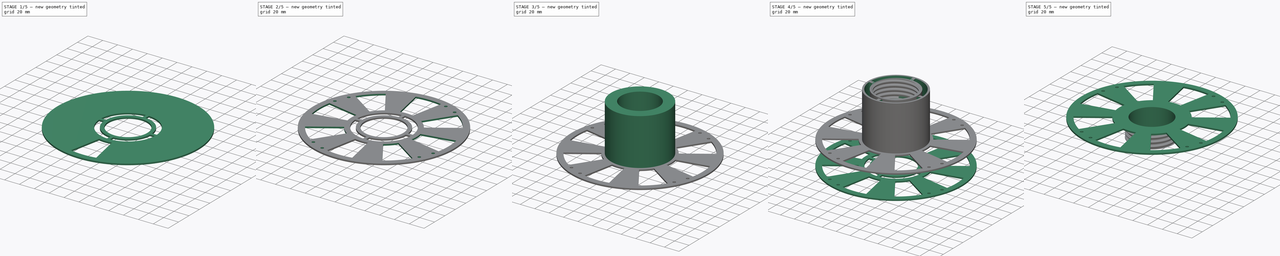
[diagram: build sequence overview — one tinted view per stage of 5, left to right]
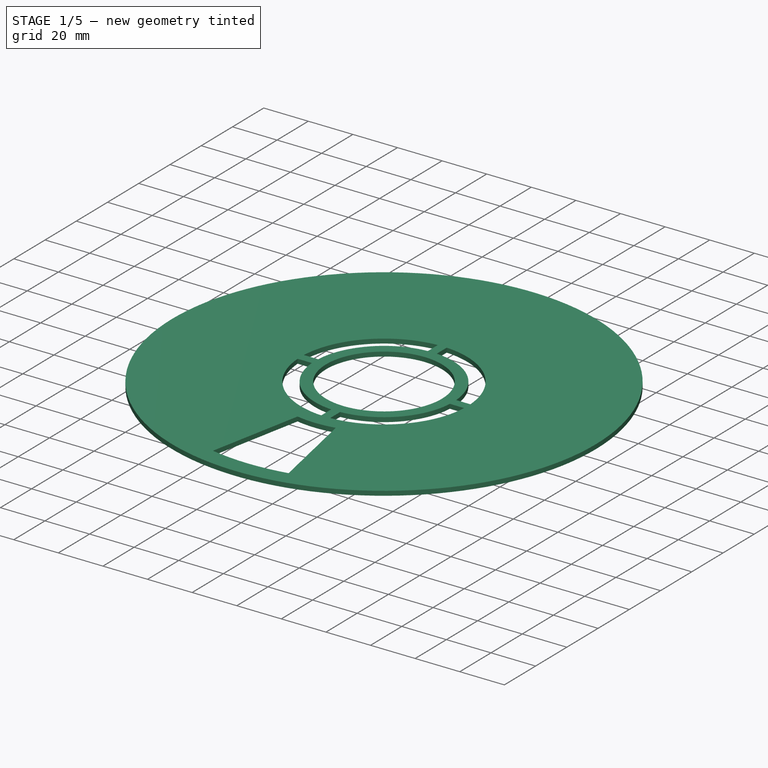
[diagram: stage 1 of 5 — iso view after this stage's code; geometry added in this stage tinted green]
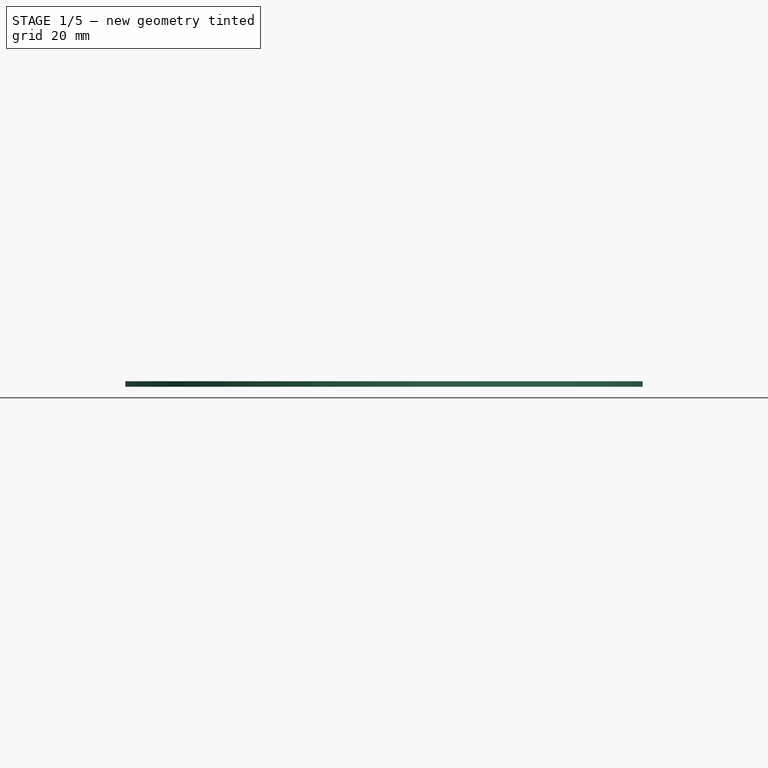
[diagram: stage 1 of 5 — front view after this stage's code; geometry added in this stage tinted green]
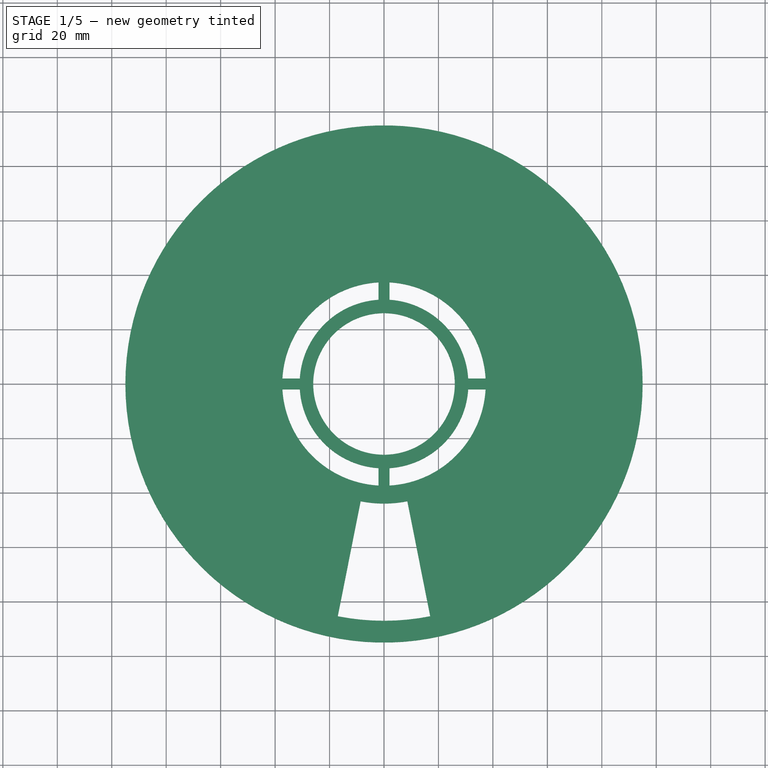
[diagram: stage 1 of 5 — top view after this stage's code; geometry added in this stage tinted green]
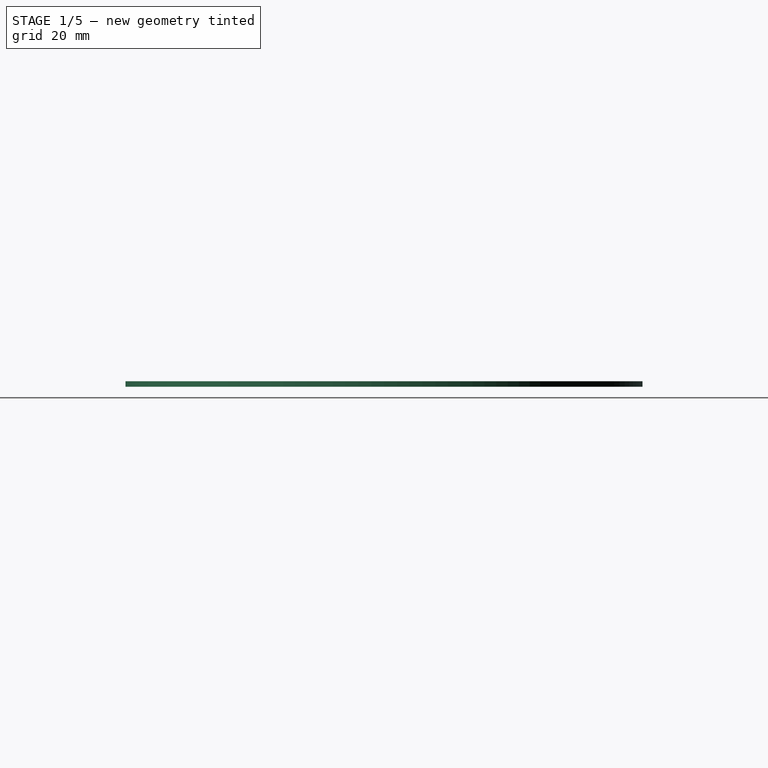
[diagram: stage 1 of 5 — right view after this stage's code; geometry added in this stage tinted green]
FCSTD DOCUMENT  (FreeCAD 1.0R39109 (Git))
Label: FilamentSpool
License: All rights reserved
LicenseURL: https://en.wikipedia.org/wiki/All_rights_reserved
objects: Sketcher::SketchObject×8, PartDesign::Pad×5, PartDesign::Pocket×4, PartDesign::Body×4, PartDesign::PolarPattern×3, PartDesign::Hole×2, PartDesign::FeatureBase×2, PartDesign::SubShapeBinder×1, PartDesign::Chamfer×1, Part::Cut×1
note: 68 computed .brp shape members not serialized (recipe doc carries the construction recipe); baked Part::Feature solids carry a one-line shape summary decoded from their .brp

FEATURE [Sketcher::SketchObject] Sketch006  label="MainBaseSketch001"
  ArcFitTolerance = 1e-06
  AttachmentSupport = -> [XY_Plane003]
  FullyConstrained = true
  MakeInternals = false
  MapMode = 5
  sketch-geometry (2):
    g0: Circle CenterX=0 CenterY=0 CenterZ=0 NormalX=0 NormalY=0 NormalZ=1 AngleXU=0 Radius=95
    g1: Circle CenterX=0 CenterY=0 CenterZ=0 NormalX=0 NormalY=0 NormalZ=1 AngleXU=0 Radius=26
  constraints (4):
    c: Diameter(g0) = 190
    c: Coincident(g0,g-1)
    c: Coincident(g1,g0)
    c: Diameter(g1) = 52
FEATURE [PartDesign::Pad] Pad004  label="MainBasePad001"
  Direction = (0,0,1)
  Length = 2
  Length2 = 10
  Profile = -> Sketch006
  ReferenceAxis = -> Sketch006 [N_Axis]
  Refine = true
  Suppressed = false
  Type = 0
FEATURE [Sketcher::SketchObject] Sketch008  label="MainBaseCenterGapSketch"
  ArcFitTolerance = 1e-06
  ExternalGeometry = -> [Pad004]
  FullyConstrained = true
  MakeInternals = false
  MapMode = 5
  Placement = pos=(0,0,72) rot=(0,0,1;0rad)
  sketch-geometry (8):
    g0: ArcOfCircle CenterX=-0.124363 CenterY=-0.124363 CenterZ=0 NormalX=0 NormalY=0 NormalZ=1 AngleXU=0 Radius=37.5 StartAngle=0.05668 EndAngle=1.51412
    g1: ArcOfCircle CenterX=0 CenterY=0 CenterZ=0 NormalX=0 NormalY=0 NormalZ=1 AngleXU=0 Radius=31 StartAngle=0.064561 EndAngle=1.50624
    g2: LineSegment StartX=37.3154 StartY=2 StartZ=0 EndX=30.9354 EndY=2 EndZ=0
    g3: LineSegment StartX=2 StartY=37.3154 StartZ=0 EndX=2 EndY=30.9354 EndZ=0
    g4: GeomPoint X=0 Y=25.9354 Z=0
    g5: LineSegment [constr] StartX=0 StartY=0 StartZ=0 EndX=26.3921 EndY=26.3921 EndZ=0
    g6: GeomPoint X=18.3848 Y=18.3848 Z=0
    g7: GeomPoint X=21.9203 Y=21.9203 Z=0
  constraints (22):
    c: Coincident(g2,g0)
    c: Coincident(g2,g1)
    c: Coincident(g3,g0)
    c: Coincident(g3,g1)
    c: Coincident(g1,g-1)
    c: Horizontal(g2)
    c: Vertical(g3)
    c: DistanceY(g3,g3) = 6.38
    c: DistanceX(g2,g2) = 6.38
    c: DistanceX(g-1,g0) = 2
    c: DistanceY(g-1,g0) = 2
    c: PointOnObject(g4,g-2)
    c: DistanceY(g4,g1) = 5
    c: Diameter(g0) = 75
    c: Coincident(g5,g1)
    c: Angle(g-1,g5) = 0.785398
    c: PointOnObject(g7,g1)
    c: PointOnObject(g7,g5)
    c: PointOnObject(g6,g5)
    c: Distance(g6,g7) = 5
    c: PointOnObject(g5,g0)
    c: PointOnObject(g6,g-3)
FEATURE [PartDesign::Pocket] Pocket002  label="MainBaseCenterGapPocket"
  BaseFeature = -> Pad004
  Direction = (0,0,-1)
  Length = 5
  Length2 = 5
  Profile = -> Sketch008
  ReferenceAxis = -> Sketch008 [N_Axis]
  Refine = true
  Suppressed = false
  Type = 1
FEATURE [PartDesign::Body] Body005  label="ThreadMold"
  AllowCompound = false
  Group = -> [Binder,Sketch013,Pad007,Hole001]
  Origin = -> Origin005
  Tip = -> Hole001
FEATURE [PartDesign::PolarPattern] PolarPattern002  label="MainBaseCenterPattern"
  Angle = 360
  Axis = -> Sketch008 [N_Axis]
  BaseFeature = -> Pocket002
  Mode = 0
  Occurrences = 4
  Offset = 120
  Originals = -> [Pocket002]
  Refine = true
  Suppressed = false
  TransformMode = 0
FEATURE [PartDesign::Pocket] Pocket003  label="MainBaseSideHolePocket"
  BaseFeature = -> PolarPattern002
  Direction = (0,0,1)
  Length = 2
  Length2 = 5
  Profile = -> Sketch009
  ReferenceAxis = -> Sketch009 [N_Axis]
  Refine = true
  Suppressed = false
  Type = 1
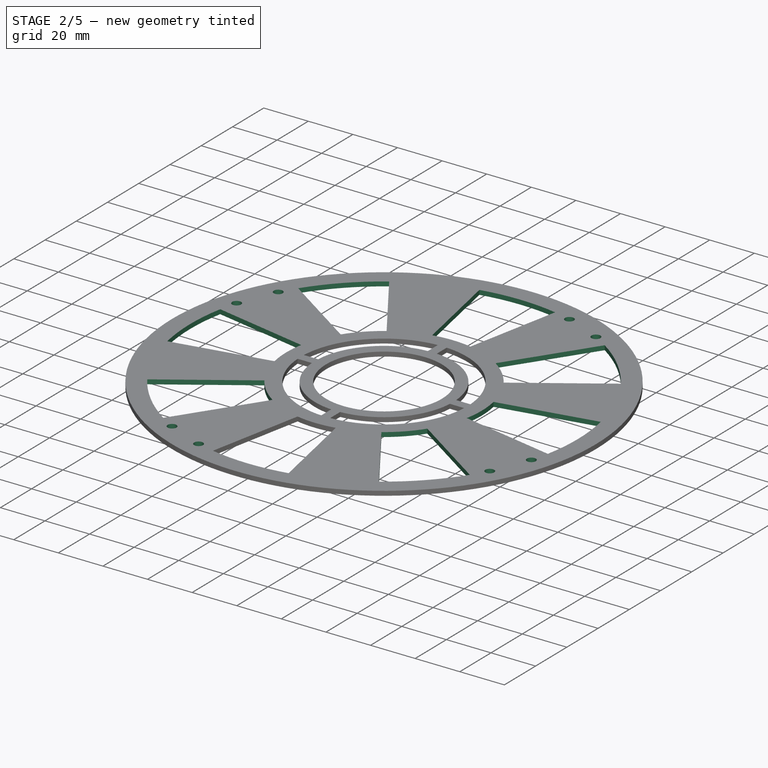
[diagram: stage 2 of 5 — iso view after this stage's code; geometry added in this stage tinted green]
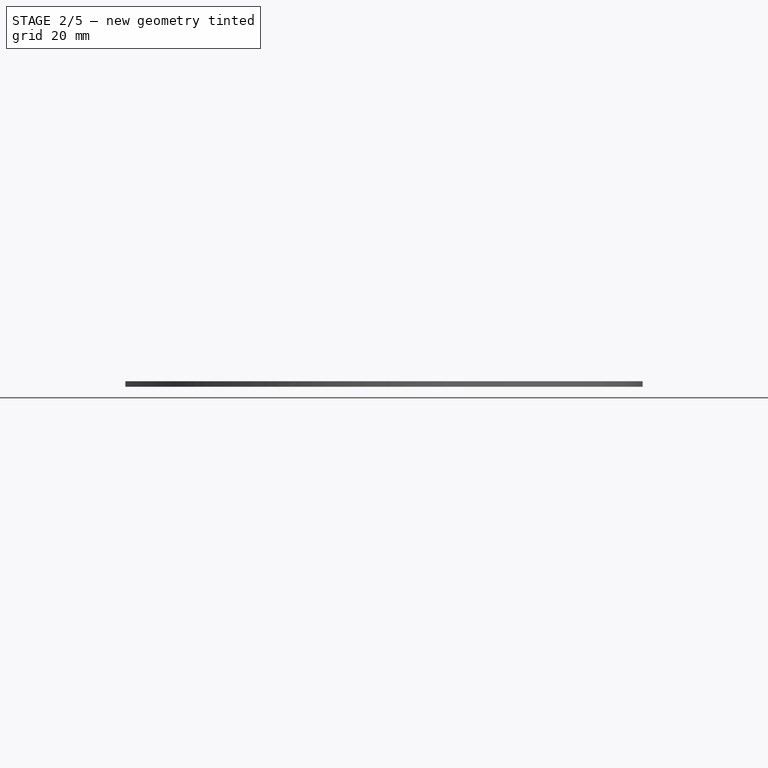
[diagram: stage 2 of 5 — front view after this stage's code; geometry added in this stage tinted green]
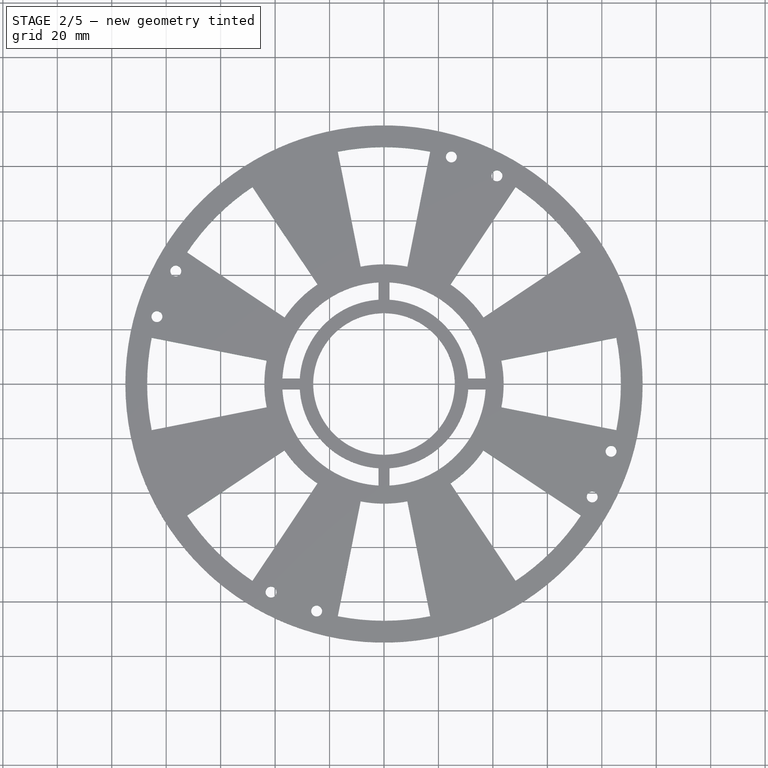
[diagram: stage 2 of 5 — top view after this stage's code; geometry added in this stage tinted green]
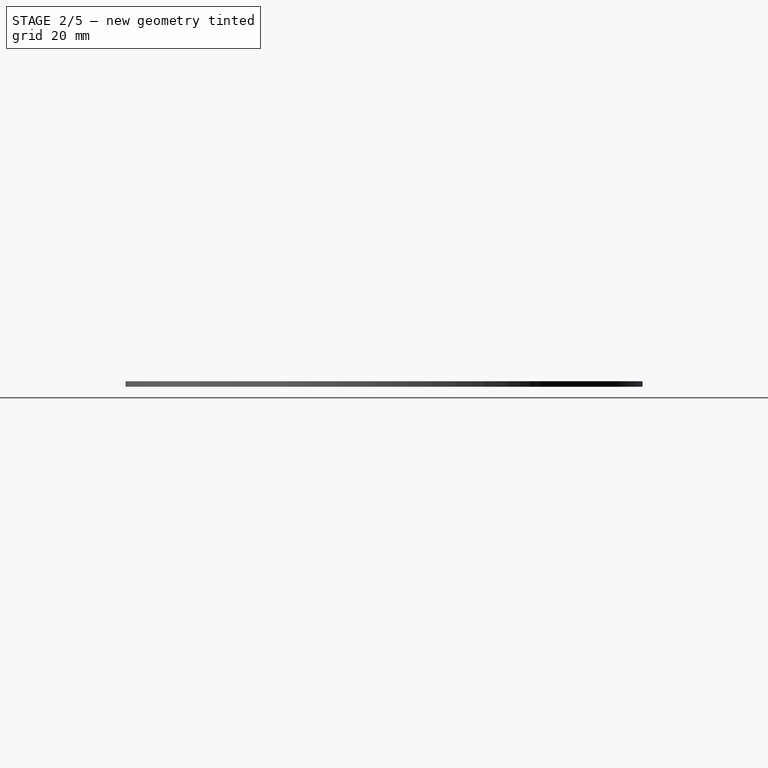
[diagram: stage 2 of 5 — right view after this stage's code; geometry added in this stage tinted green]
FEATURE [PartDesign::PolarPattern] PolarPattern001  label="MainBaseSideHolePattern"
  Angle = 360
  Axis = -> Sketch009 [N_Axis]
  BaseFeature = -> Pocket003
  Mode = 0
  Occurrences = 8
  Offset = 120
  Originals = -> [Pocket003]
  Refine = true
  Suppressed = false
  TransformMode = 0
FEATURE [Sketcher::SketchObject] Sketch014
  ArcFitTolerance = 1e-06
  AttachmentSupport = -> [PolarPattern001]
  ExternalGeometry = -> [PolarPattern001]
  FullyConstrained = true
  MakeInternals = false
  MapMode = 5
  Placement = pos=(0,0,2) rot=(0,0,1;0rad)
  sketch-geometry (3):
    g0: Circle CenterX=24.7391 CenterY=83.4085 CenterZ=0 NormalX=0 NormalY=0 NormalZ=1 AngleXU=0 Radius=2
    g1: Circle CenterX=41.4855 CenterY=76.4719 CenterZ=0 NormalX=0 NormalY=0 NormalZ=1 AngleXU=0 Radius=2
    g2: Circle [constr] CenterX=0 CenterY=0 CenterZ=0 NormalX=0 NormalY=0 NormalZ=1 AngleXU=0 Radius=87
  constraints (8):
    c: Equal(g0,g1)
    c: Diameter(g0) = 4
    c: Coincident(g2,g-1)
    c: PointOnObject(g1,g2)
    c: PointOnObject(g-3,g2)
    c: PointOnObject(g0,g2)
    c: Distance(g1,g-4) = 8
    c: Distance(g0,g-3) = 8
FEATURE [PartDesign::Pocket] Pocket
  BaseFeature = -> PolarPattern001
  Direction = (0,0,-1)
  Length = 5
  Length2 = 5
  Profile = -> Sketch014
  ReferenceAxis = -> Sketch014 [N_Axis]
  Refine = true
  Suppressed = false
  Type = 1
FEATURE [PartDesign::PolarPattern] PolarPattern
  Angle = 360
  Axis = -> Sketch014 [N_Axis]
  BaseFeature = -> Pocket
  Mode = 0
  Occurrences = 4
  Offset = 120
  Originals = -> [Pocket]
  Refine = true
  Suppressed = false
  TransformMode = 0
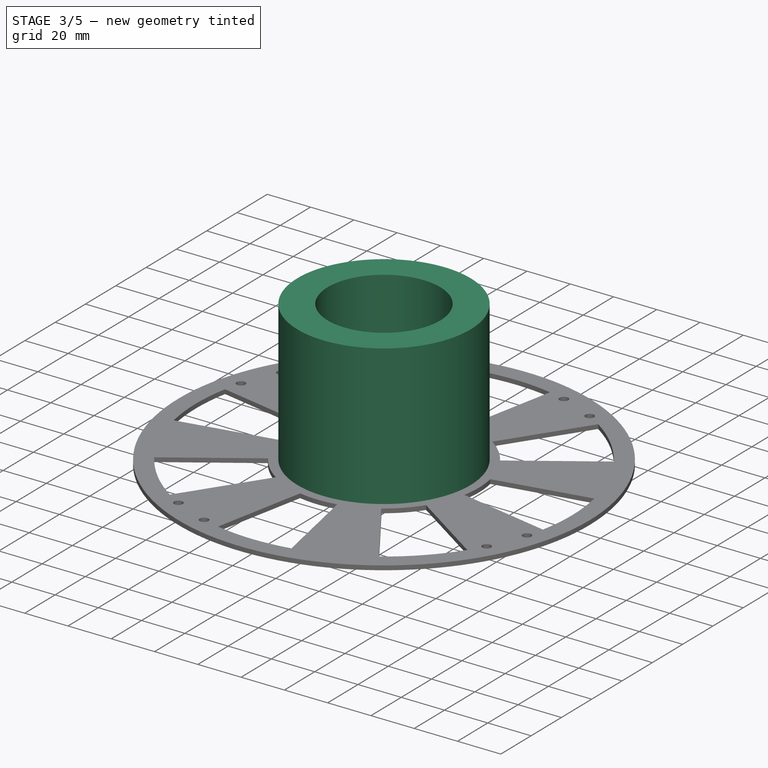
[diagram: stage 3 of 5 — iso view after this stage's code; geometry added in this stage tinted green]
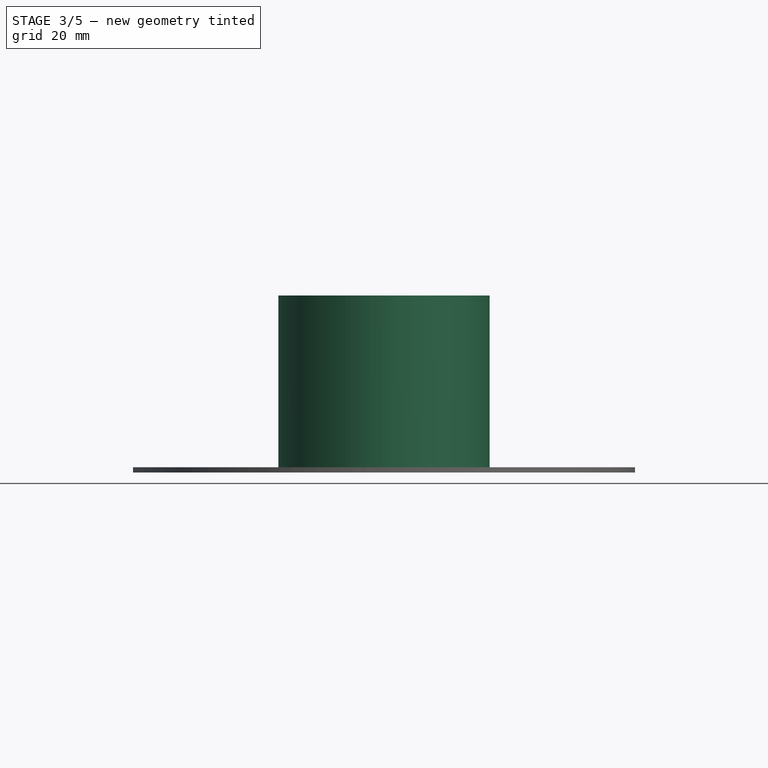
[diagram: stage 3 of 5 — front view after this stage's code; geometry added in this stage tinted green]
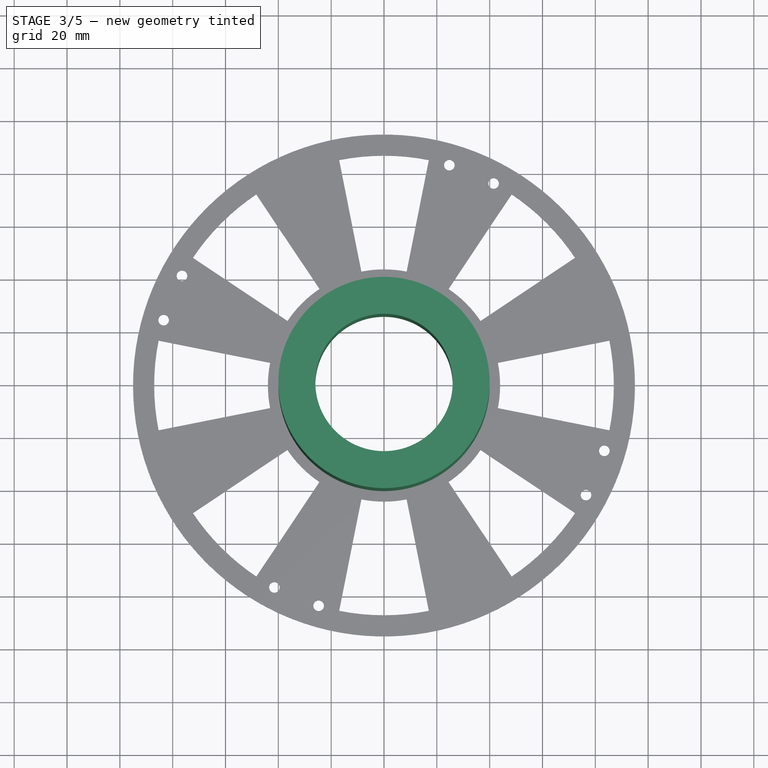
[diagram: stage 3 of 5 — top view after this stage's code; geometry added in this stage tinted green]
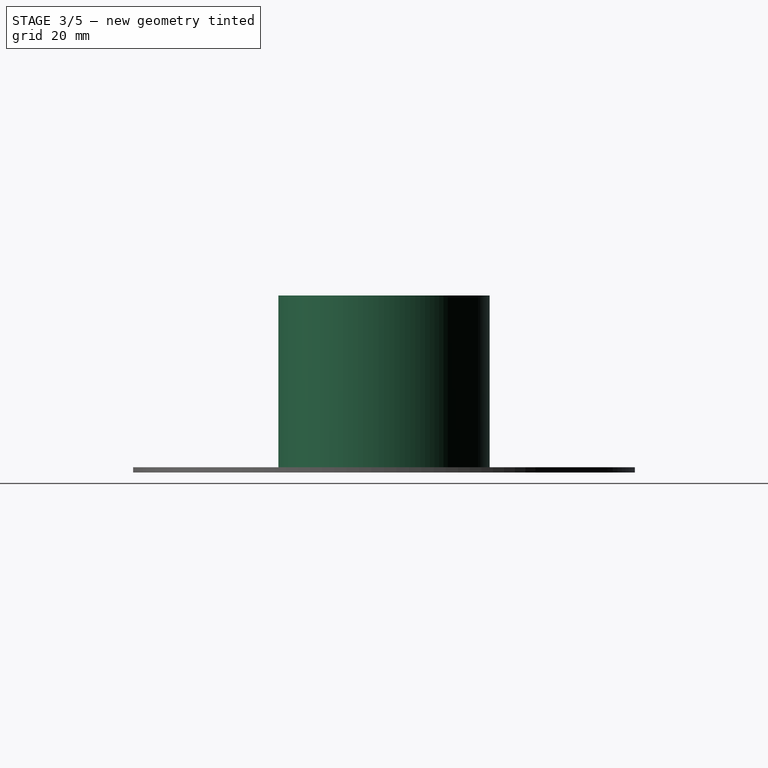
[diagram: stage 3 of 5 — right view after this stage's code; geometry added in this stage tinted green]
FEATURE [Sketcher::SketchObject] Sketch009  label="MainBaseSideHoleSketch"
  ArcFitTolerance = 1e-06
  AttachmentSupport = -> [Pocket002]
  ExternalGeometry = -> [Pocket002]
  FullyConstrained = true
  MakeInternals = false
  MapMode = 5
  Placement = pos=(0,0,0) rot=(1,0,0;3.14159rad)
  sketch-geometry (9):
    g0: GeomPoint X=0 Y=95 Z=0
    g1: GeomPoint X=0 Y=43.9473 Z=0
    g2: GeomPoint X=0 Y=87 Z=0
    g3: ArcOfCircle CenterX=0 CenterY=0 CenterZ=0 NormalX=0 NormalY=0 NormalZ=1 AngleXU=0 Radius=87 StartAngle=1.37445 EndAngle=1.76715
    g4: ArcOfCircle CenterX=0 CenterY=0 CenterZ=0 NormalX=0 NormalY=0 NormalZ=1 AngleXU=0 Radius=43.9473 StartAngle=1.37445 EndAngle=1.76715
    g5: LineSegment StartX=-8.5737 StartY=43.1029 StartZ=0 EndX=-16.9729 EndY=85.3283 EndZ=0
    g6: LineSegment StartX=8.5737 StartY=43.1029 StartZ=0 EndX=16.9729 EndY=85.3283 EndZ=0
    g7: LineSegment [constr] StartX=0 StartY=0 StartZ=0 EndX=-8.5737 EndY=43.1029 EndZ=0
    g8: LineSegment [constr] StartX=0 StartY=0 StartZ=0 EndX=8.5737 EndY=43.1029 EndZ=0
  constraints (22):
    c: PointOnObject(g0,g-3)
    c: PointOnObject(g0,g-2)
    c: Coincident(g4,g-1)
    c: Coincident(g3,g4)
    c: PointOnObject(g2,g-2)
    c: PointOnObject(g1,g-2)
    c: DistanceY(g-4,g1) = 6
    c: DistanceY(g2,g0) = 8
    c: PointOnObject(g2,g3)
    c: PointOnObject(g1,g4)
    c: Coincident(g3,g5)
    c: Coincident(g3,g6)
    c: Coincident(g5,g4)
    c: Coincident(g6,g4)
    c: Angle(g6,g-2) = 0.19635
    c: Angle(g-2,g5) = 0.19635
    c: Coincident(g7,g3)
    c: Coincident(g7,g4)
    c: Coincident(g8,g3)
    c: Coincident(g8,g4)
    c: Parallel(g6,g8)
    c: Parallel(g5,g7)
FEATURE [PartDesign::SubShapeBinder] Binder
  BindCopyOnChange = 0
  BindMode = 0
  ClaimChildren = false
  Context = -> Body005 [Binder.]
  Fuse = false
  MakeFace = true
  OffsetFill = false
  OffsetIntersection = false
  OffsetJoinType = 0
  OffsetOpenResult = false
  PartialLoad = false
  Refine = true
  Relative = true
  Support = -> [Body004[Pocket004.]]
  _Version = 2
FEATURE [Sketcher::SketchObject] Sketch013
  ArcFitTolerance = 1e-06
  AttachmentSupport = -> [Binder]
  FullyConstrained = false
  MakeInternals = false
  MapMode = 5
  Placement = pos=(0,0,67) rot=(0,0,1;0rad)
  sketch-geometry (2):
    g0: Circle CenterX=0 CenterY=0 CenterZ=0 NormalX=0 NormalY=0 NormalZ=1 AngleXU=0 Radius=31
    g1: Circle CenterX=0 CenterY=0 CenterZ=0 NormalX=0 NormalY=0 NormalZ=1 AngleXU=0 Radius=26
  constraints (3):
    c: Coincident(g0,g-1)
    c: Tangent(g0,g-3)
    c: Coincident(g1,g0)
FEATURE [PartDesign::Pad] Pad007
  Direction = (0,0,1)
  Length = 25
  Length2 = 10
  Profile = -> Sketch013
  ReferenceAxis = -> Sketch013 [N_Axis]
  Refine = true
  Reversed = true
  Suppressed = false
  Type = 0
FEATURE [PartDesign::Hole] Hole001
  BaseFeature = -> Pad007
  CustomThreadClearance = 0
  Depth = 30
  DepthType = 0
  Diameter = 54.575
  DrillForDepth = false
  DrillPoint = 1
  DrillPointAngle = 118
  HoleCutCountersinkAngle = 90
  HoleCutCustomValues = false
  HoleCutDepth = 0
  HoleCutDiameter = 0
  HoleCutType = 0
  ModelThread = true
  Profile = -> Pad007 [Edge5]
  Refine = true
  Suppressed = false
  Tapered = false
  TaperedAngle = 90
  ThreadClass = 0
  ThreadDepth = 30
  ThreadDepthType = 0
  ThreadDirection = 0
  ThreadFit = 0
  ThreadSize = 37
  ThreadType = 1
  Threaded = true
  UseCustomThreadClearance = false
FEATURE [PartDesign::Body] Body003  label="BasePlate"
  AllowCompound = false
  Group = -> [Sketch006,Pad004,Sketch008,Pocket002,PolarPattern002,Sketch009,Pocket003,PolarPattern001,Sketch014,Pocket,PolarPattern]
  Origin = -> Origin003
  Tip = -> PolarPattern
FEATURE [PartDesign::FeatureBase] Clone001
  BaseFeature = -> Body003
  Suppressed = false
FEATURE [Sketcher::SketchObject] Sketch010
  ArcFitTolerance = 1e-06
  AttachmentSupport = -> [Clone001]
  FullyConstrained = true
  MakeInternals = false
  MapMode = 5
  Placement = pos=(0,0,2) rot=(0,0,1;0rad)
  sketch-geometry (2):
    g0: Circle CenterX=0 CenterY=0 CenterZ=0 NormalX=0 NormalY=0 NormalZ=1 AngleXU=0 Radius=26
    g1: Circle CenterX=0 CenterY=0 CenterZ=0 NormalX=0 NormalY=0 NormalZ=1 AngleXU=0 Radius=40
  constraints (4):
    c: Coincident(g0,g-1)
    c: Equal(g0,g-3)
    c: Coincident(g1,g0)
    c: Diameter(g1) = 80
FEATURE [PartDesign::Pad] Pad005
  BaseFeature = -> Clone001
  Direction = (0,0,1)
  Length = 65
  Length2 = 10
  Profile = -> Sketch010
  ReferenceAxis = -> Sketch010 [N_Axis]
  Refine = true
  Suppressed = false
  Type = 0
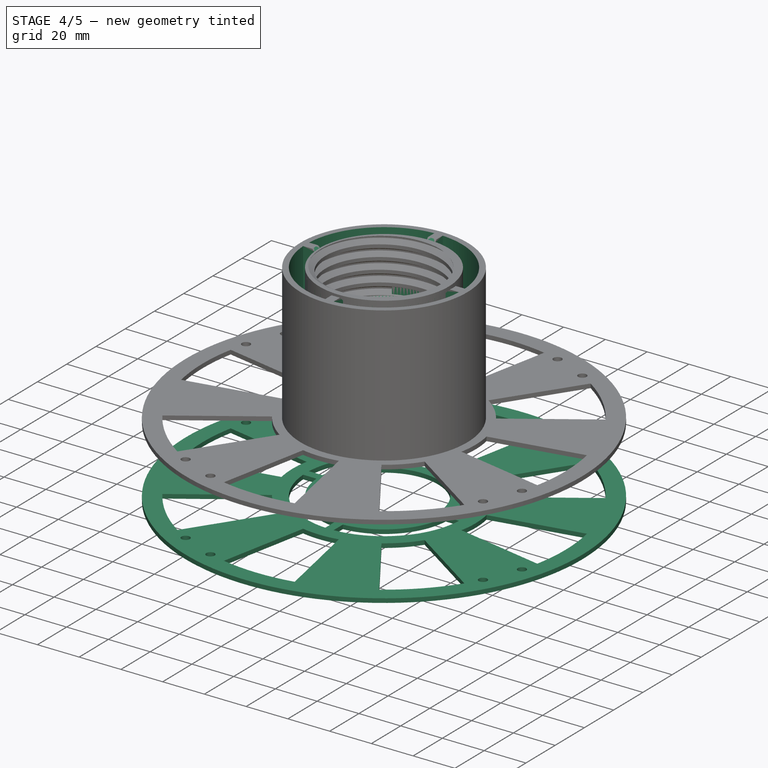
[diagram: stage 4 of 5 — iso view after this stage's code; geometry added in this stage tinted green]
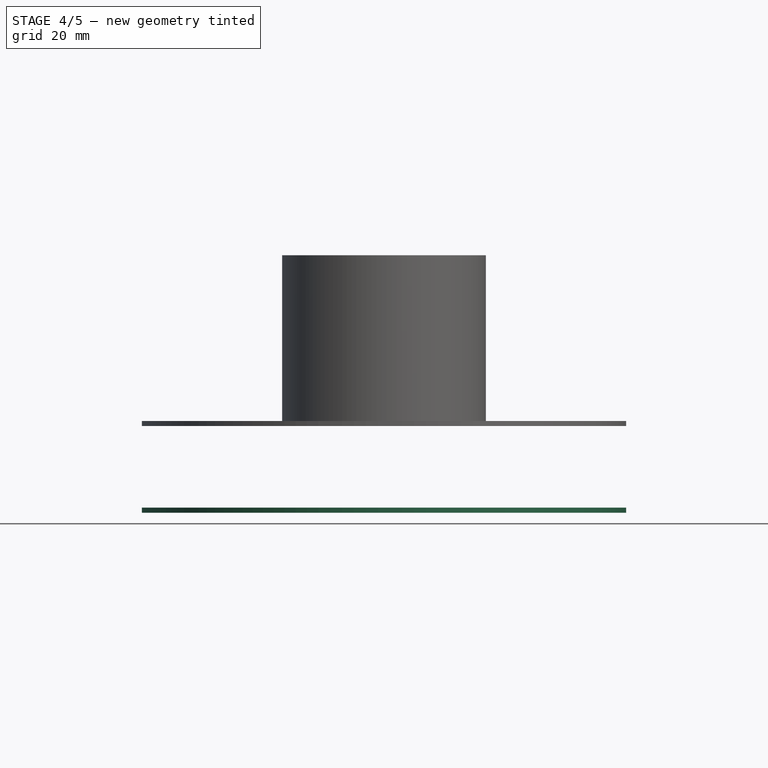
[diagram: stage 4 of 5 — front view after this stage's code; geometry added in this stage tinted green]
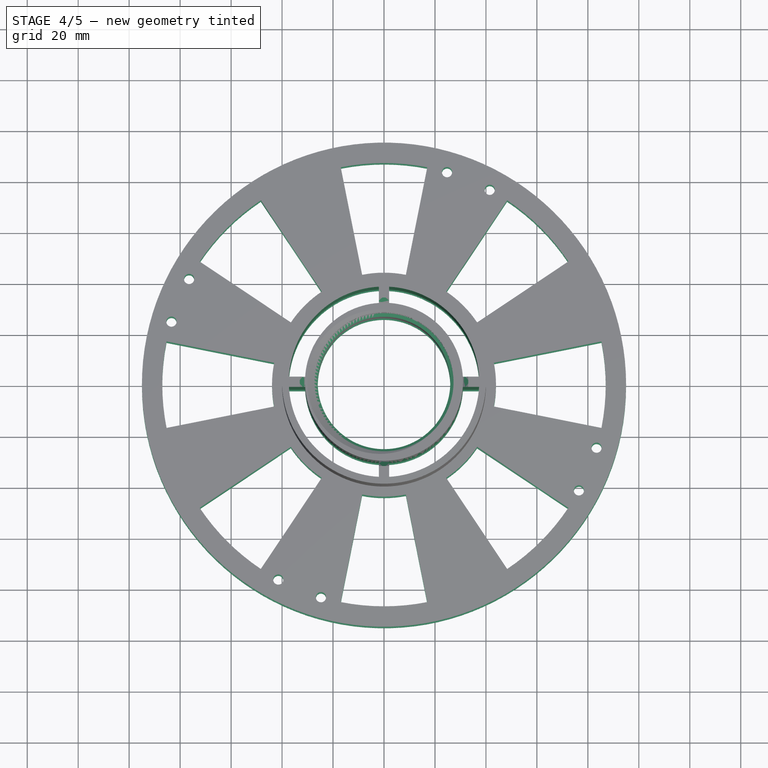
[diagram: stage 4 of 5 — top view after this stage's code; geometry added in this stage tinted green]
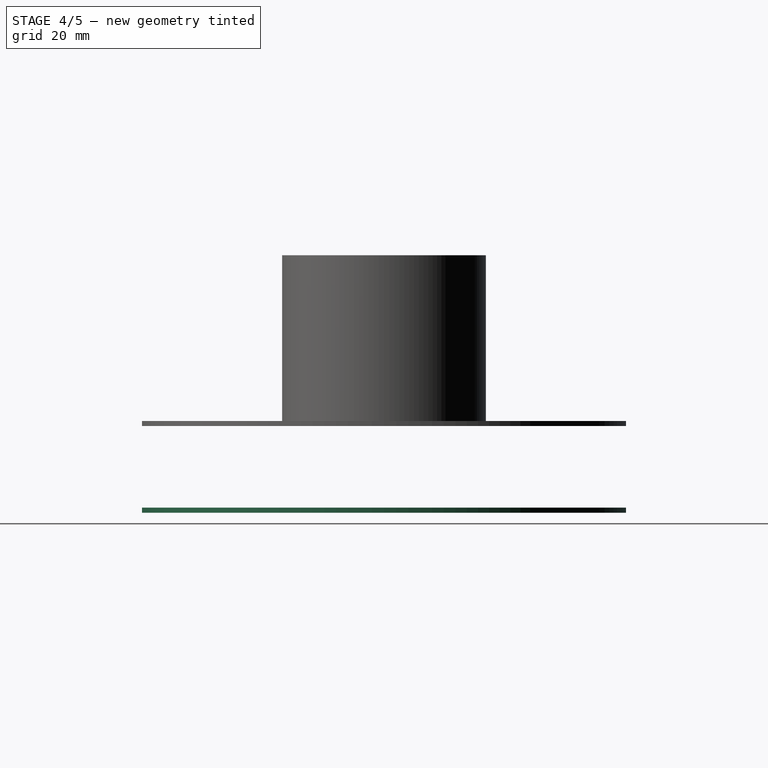
[diagram: stage 4 of 5 — right view after this stage's code; geometry added in this stage tinted green]
FEATURE [PartDesign::Pocket] Pocket004
  BaseFeature = -> Pad005
  Direction = (0,0,1)
  Length = 5
  Length2 = 5
  Profile = -> Pad005 [Face64,Face62,Face61,Face63]
  Refine = true
  Suppressed = false
  Type = 1
FEATURE [PartDesign::FeatureBase] Clone
  BaseFeature = -> Body003
  Placement = pos=(0,0,-34) rot=(0,0,1;0rad)
  Suppressed = false
FEATURE [PartDesign::Hole] Hole
  BaseFeature = -> Pocket004
  CustomThreadClearance = 1.3
  Depth = 25
  DepthType = 0
  Diameter = 55.8
  DrillForDepth = false
  DrillPoint = 1
  DrillPointAngle = 118
  HoleCutCountersinkAngle = 90
  HoleCutCustomValues = false
  HoleCutDepth = 0
  HoleCutDiameter = 66.1
  HoleCutType = 2
  ModelThread = true
  Profile = -> Pocket004 [Edge129]
  Refine = true
  Suppressed = false
  Tapered = false
  TaperedAngle = 90
  ThreadClass = 0
  ThreadDepth = 25
  ThreadDepthType = 0
  ThreadDirection = 0
  ThreadFit = 0
  ThreadSize = 37
  ThreadType = 1
  Threaded = true
  UseCustomThreadClearance = true
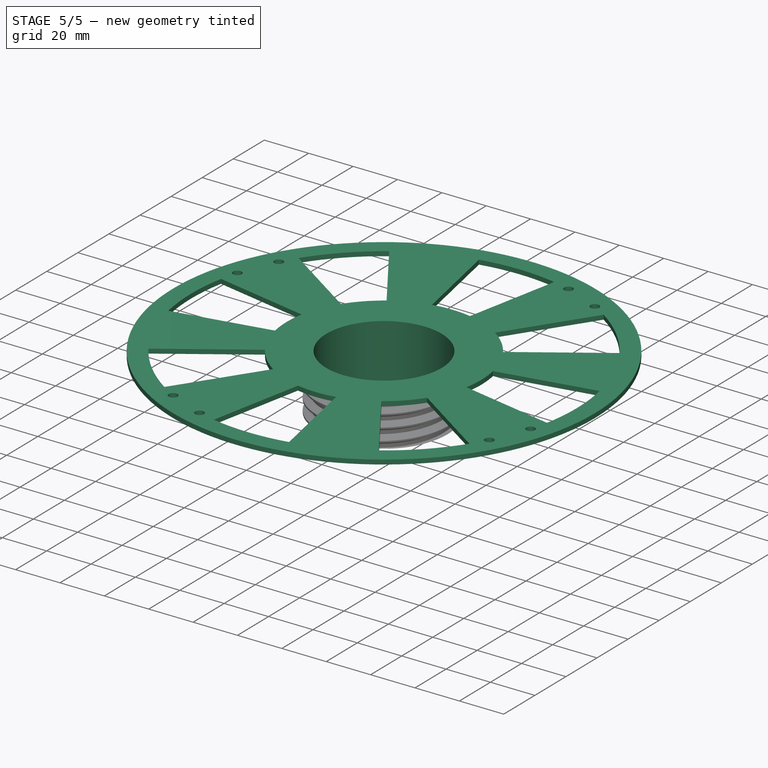
[diagram: stage 5 of 5 — iso view after this stage's code; geometry added in this stage tinted green]
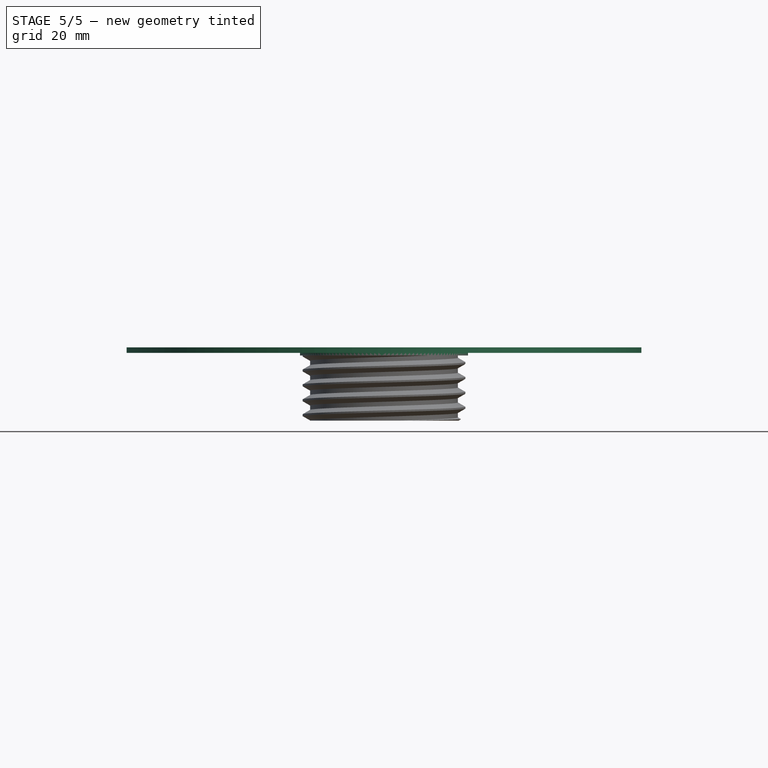
[diagram: stage 5 of 5 — front view after this stage's code; geometry added in this stage tinted green]
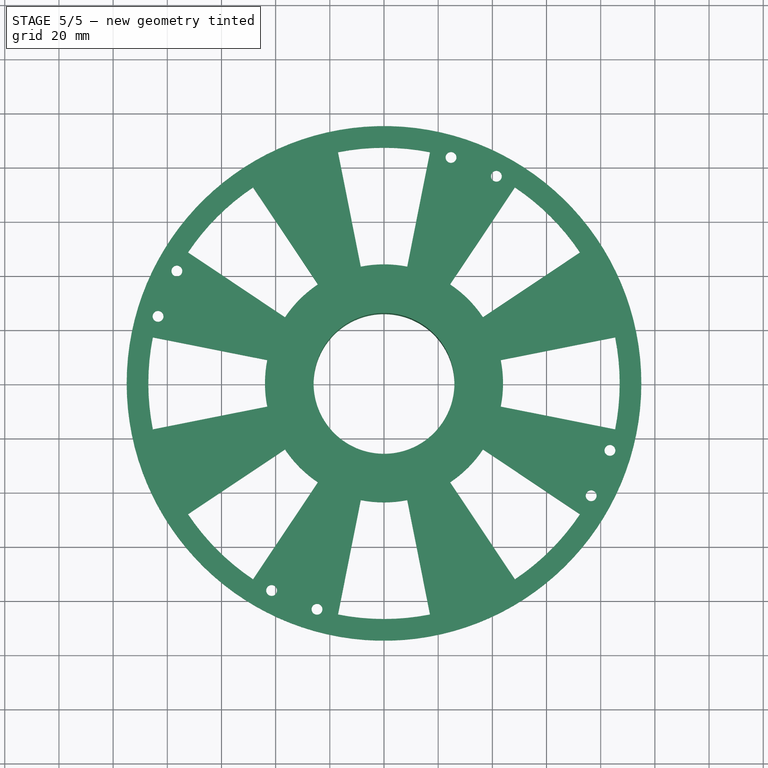
[diagram: stage 5 of 5 — top view after this stage's code; geometry added in this stage tinted green]
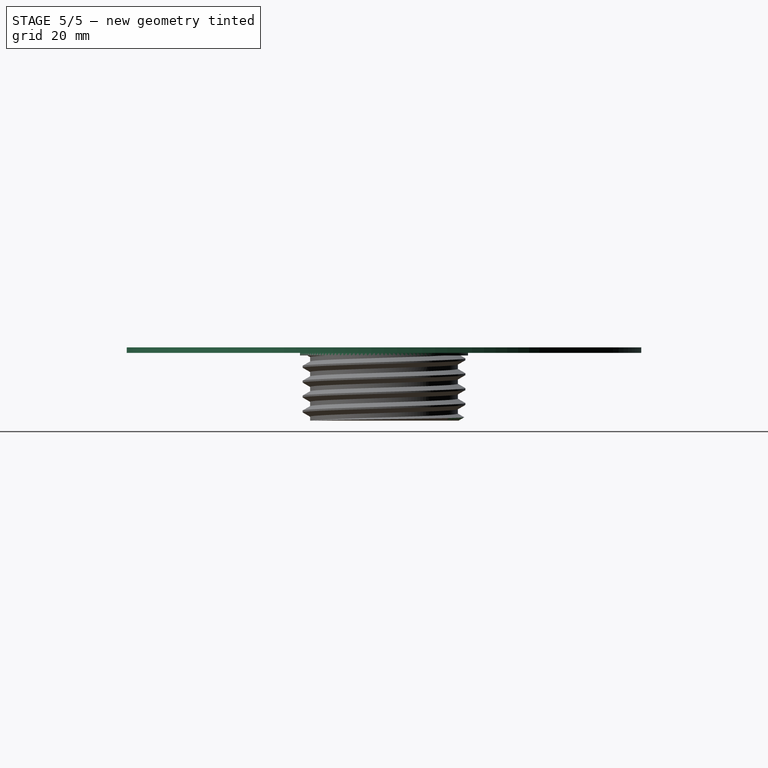
[diagram: stage 5 of 5 — right view after this stage's code; geometry added in this stage tinted green]
FEATURE [Sketcher::SketchObject] Sketch
  ArcFitTolerance = 1e-06
  AttachmentSupport = -> [Clone]
  FullyConstrained = true
  MakeInternals = false
  MapMode = 5
  Placement = pos=(0,0,-34) rot=(1,0,0;3.14159rad)
  sketch-geometry (2):
    g0: Circle CenterX=0 CenterY=0 CenterZ=0 NormalX=0 NormalY=0 NormalZ=1 AngleXU=0 Radius=26
    g1: Circle CenterX=0 CenterY=0 CenterZ=0 NormalX=0 NormalY=0 NormalZ=1 AngleXU=0 Radius=31
  constraints (4):
    c: Coincident(g0,g-1)
    c: Coincident(g1,g0)
    c: Equal(g0,g-4)
    c: Equal(g1,g-3)
FEATURE [PartDesign::Pad] Pad
  BaseFeature = -> Clone
  Direction = (0,0,-1)
  Length = 25
  Length2 = 10
  Placement = pos=(0,0,-34) rot=(0,0,1;0rad)
  Profile = -> Sketch
  ReferenceAxis = -> Sketch [N_Axis]
  Refine = true
  Suppressed = false
  Type = 0
FEATURE [Sketcher::SketchObject] Sketch012
  ArcFitTolerance = 1e-06
  AttachmentSupport = -> [Pad]
  ExternalGeometry = -> [Pad]
  FullyConstrained = true
  MakeInternals = false
  MapMode = 5
  Placement = pos=(0,0,-34) rot=(1,0,0;3.14159rad)
  sketch-geometry (2):
    g0: Circle CenterX=0 CenterY=0 CenterZ=0 NormalX=0 NormalY=0 NormalZ=1 AngleXU=0 Radius=38
    g1: Circle CenterX=0 CenterY=0 CenterZ=0 NormalX=0 NormalY=0 NormalZ=1 AngleXU=0 Radius=31
  constraints (4):
    c: Coincident(g0,g-1)
    c: Tangent(g0,g-3)
    c: Coincident(g1,g0)
    c: Equal(g1,g-5)
FEATURE [PartDesign::Pad] Pad006
  BaseFeature = -> Pad
  Direction = (0,0,-1)
  Length = 2
  Length2 = 10
  Placement = pos=(0,0,-34) rot=(0,0,1;0rad)
  Profile = -> Sketch012
  ReferenceAxis = -> Sketch012 [N_Axis]
  Refine = true
  Reversed = true
  Suppressed = false
  Type = 0
FEATURE [PartDesign::Body] Body004  label="BaseBody"
  AllowCompound = false
  Group = -> [Clone001,Sketch010,Pad005,Pocket004,Hole]
  Origin = -> Origin004
  Tip = -> Hole
FEATURE [PartDesign::Chamfer] Chamfer
  Angle = 60
  Base = -> Pad006 [Edge54]
  BaseFeature = -> Pad006
  ChamferType = 2
  FlipDirection = false
  Placement = pos=(0,0,-34) rot=(0,0,1;0rad)
  Refine = true
  Size = 2
  Size2 = 1
  SupportTransform = false
  Suppressed = false
  UseAllEdges = false
FEATURE [PartDesign::Body] Body  label="LidBody"
  AllowCompound = false
  Group = -> [Clone,Sketch,Pad,Sketch012,Pad006,Chamfer]
  Origin = -> Origin
  Placement = pos=(0,0,102) rot=(0,0,1;0rad)
  Tip = -> Chamfer
FEATURE [Part::Cut] Cut  label="LidBody001"
  Base = -> Body
  Tool = -> Body005
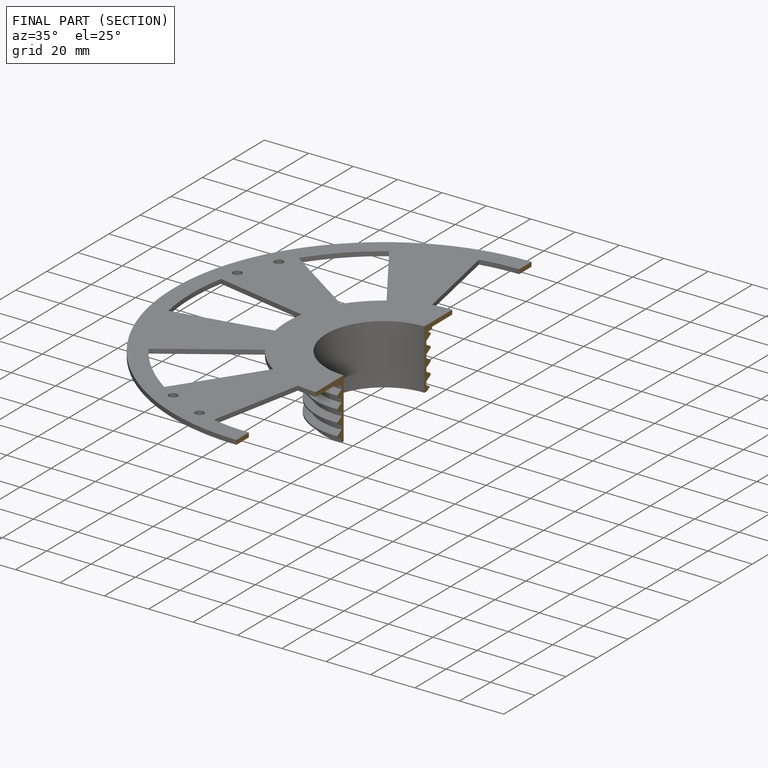
[diagram: finished part — half-section view (interior)]
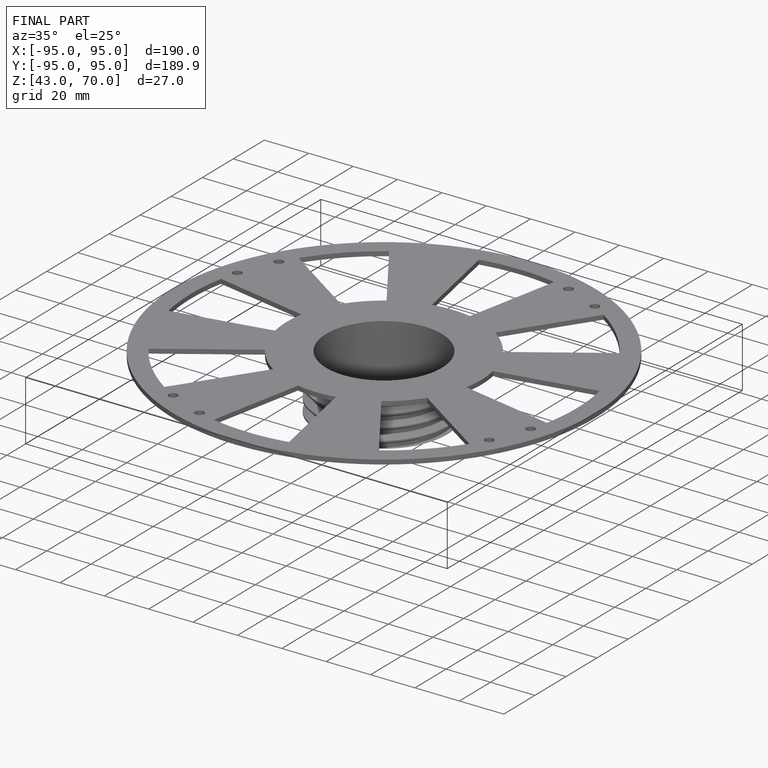
[diagram: finished part — iso view with bounding-box wireframe]
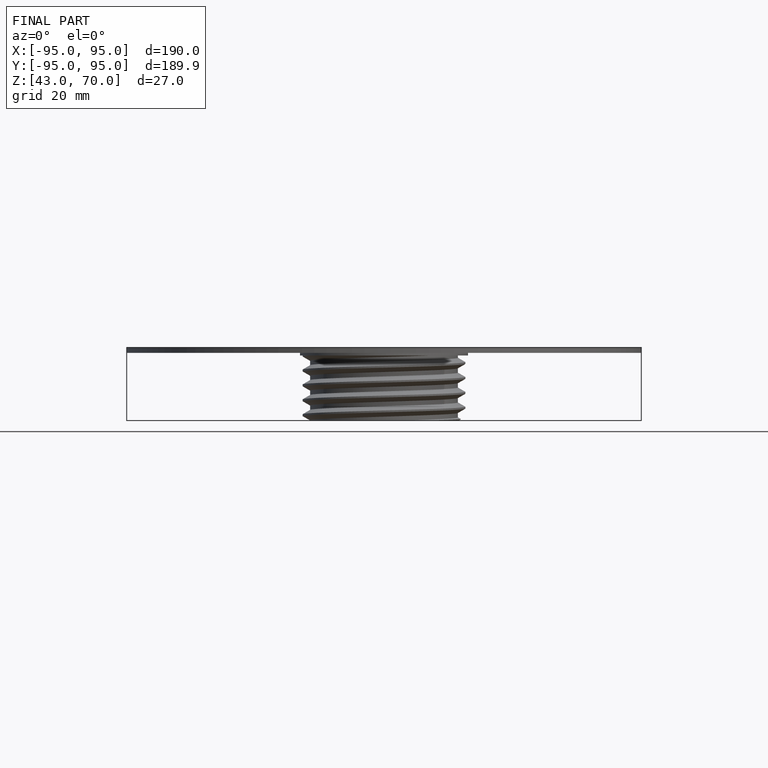
[diagram: finished part — front view with bounding-box wireframe]
